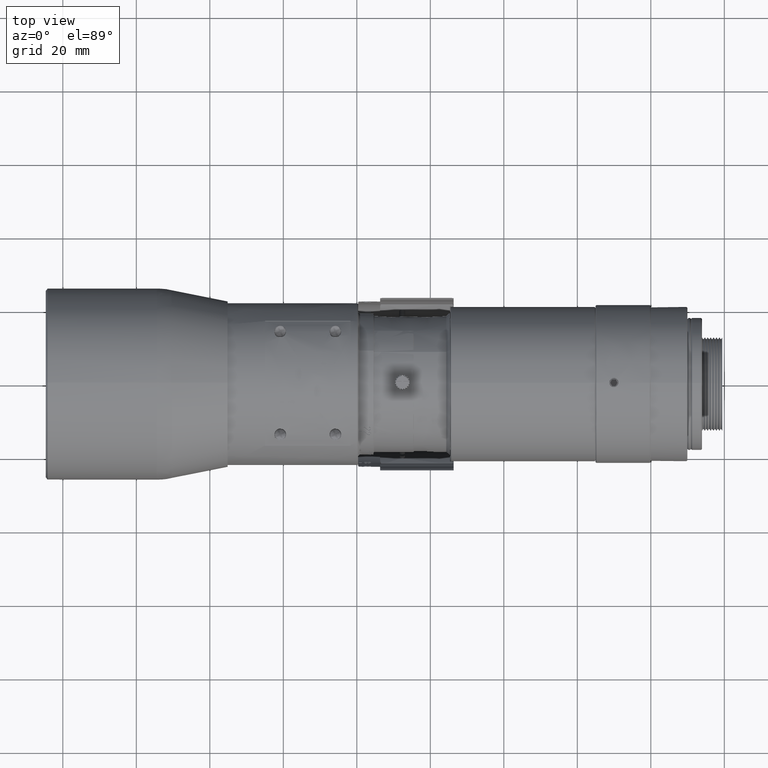
[diagram: clean part render]
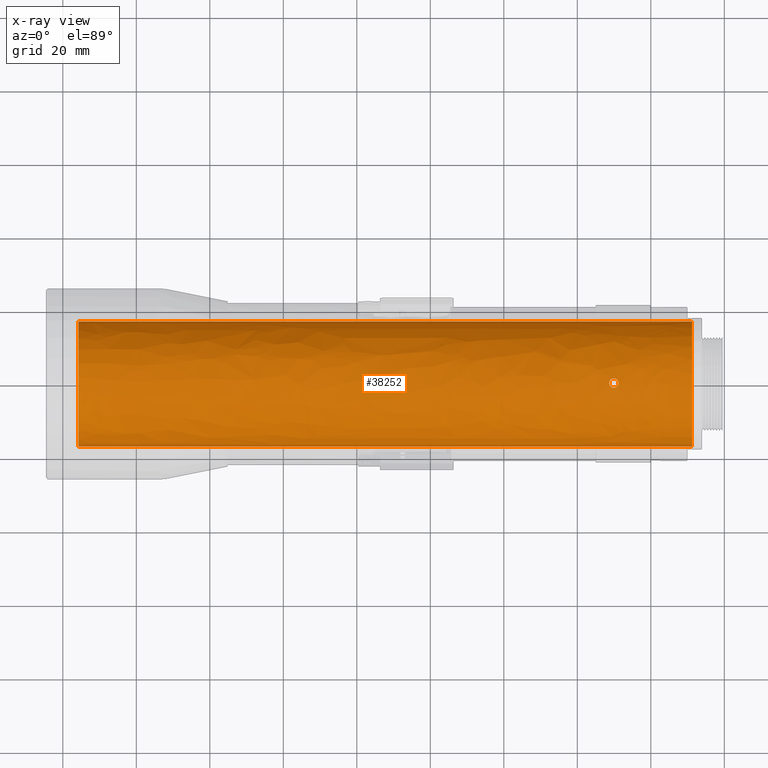
[diagram: x-ray — body ghosted, one internal face saturated and labeled with its STEP entity id]
A machine part, top view, then the same camera in x-ray: the body is ghosted and one INTERNAL B-rep face — a face not visible from any outside direction — is saturated and labeled: STEP entity #38252.
In plain terms, the highlighted face is a freeform B-spline surface patch.
Its self-contained STEP definition (entity closure, byte-faithful):
#93 = EDGE_CURVE ( 'NONE', #36945, #6915, #28534, .T. ) ;
#968 = B_SPLINE_CURVE_WITH_KNOTS ( 'NONE', 1,
 ( #3039, #31069 ),
 .UNSPECIFIED., .F., .F.,
 ( 2, 2 ),
 ( 0.0000000000000000000, 1.000000000000000000 ),
 .UNSPECIFIED. ) ;
#1198 = CARTESIAN_POINT ( 'NONE',  ( 91.23381903200002796, -2.227083858325334287, 16.99999999156800001 ) ) ;
#1501 = CARTESIAN_POINT ( 'NONE',  ( 68.78132211011450181, 0.4840254292036581529, 16.99310872926859872 ) ) ;
#1839 = CARTESIAN_POINT ( 'NONE',  ( 91.23381903199999954, 17.00000000000000711, 9.958369441000007427 ) ) ;
#1951 = CARTESIAN_POINT ( 'NONE',  ( 71.14352939452882651, 0.3176161523514182128, 16.99705119966425926 ) ) ;
#2062 = CARTESIAN_POINT ( 'NONE',  ( -75.76618096799998625, -2.999999999999999980E-09, 17.00000000000000000 ) ) ;
#2168 = CARTESIAN_POINT ( 'NONE',  ( 69.77858866378404912, 1.243030444851973337, 16.95453608318325678 ) ) ;
#2279 = CARTESIAN_POINT ( 'NONE',  ( 91.23381903199999954, 9.958369437999998297, 17.00000000199998951 ) ) ;
#2392 = CARTESIAN_POINT ( 'NONE',  ( 69.20408094663994802, 1.018173710666596232, 16.96964852246907185 ) ) ;
#2672 = CARTESIAN_POINT ( 'NONE',  ( 69.38957791143397458, -1.125426582329958292, 16.96273695177842811 ) ) ;
#2730 = CARTESIAN_POINT ( 'NONE',  ( -75.76618096800005731, 17.00000000000000711, 9.958369441000007427 ) ) ;
#2902 = CARTESIAN_POINT ( 'NONE',  ( 69.31127799167498438, -1.084740256887628540, 16.96542832699373449 ) ) ;
#3039 = CARTESIAN_POINT ( 'NONE',  ( -75.76618096799998625, 16.99999999718934873, 0.0000000000000000000 ) ) ;
#3127 = CARTESIAN_POINT ( 'NONE',  ( 71.18381877300001292, -0.1519175316954999022, 17.00000000000000355 ) ) ;
#4496 =( BOUNDED_SURFACE ( )  B_SPLINE_SURFACE ( 1, 3, ( 
 ( #40714, #2730, #34470, #2062, #41617, #23588, #24039 ),
 ( #30542, #1839, #2279, #9920, #26832, #38174, #5752 ) ),
 .UNSPECIFIED., .F., .F., .F. ) 
 B_SPLINE_SURFACE_WITH_KNOTS ( ( 2, 2 ),
 ( 4, 3, 4 ),
 ( 5.956645689006830486E-16, 1.000000000000000000 ),
 ( 0.0000000000000000000, 0.5000000000000000000, 1.000000000000000000 ),
 .UNSPECIFIED. ) 
 GEOMETRIC_REPRESENTATION_ITEM ( )  RATIONAL_B_SPLINE_SURFACE ( (
 ( 1.000000000000000000, 0.8047378540760219412, 0.8047378540760219412, 1.000000000000000000, 0.8047378540760219412, 0.8047378540760219412, 1.000000000000000000),
 ( 1.000000000000000000, 0.8047378540760219412, 0.8047378540760219412, 1.000000000000000000, 0.8047378540760219412, 0.8047378540760219412, 1.000000000000000000) ) ) 
 REPRESENTATION_ITEM ( '' )  SURFACE ( )  );
#4790 = CARTESIAN_POINT ( 'NONE',  ( 68.74217904229628573, -0.3780773361855345738, 16.99578742811408816 ) ) ;
#4992 = CARTESIAN_POINT ( 'NONE',  ( -75.76618096799998625, -14.85368398142933266, 8.563175549690672739 ) ) ;
#5197 = CARTESIAN_POINT ( 'NONE',  ( 68.85168258015103504, 0.6270209994428538325, 16.98836927865831115 ) ) ;
#5420 = CARTESIAN_POINT ( 'NONE',  ( 70.66434313007584933, 1.017600818304629673, 16.96968288934434099 ) ) ;
#5449 = CARTESIAN_POINT ( 'NONE',  ( -75.76618096799998625, 10.44602920562666348, 13.59560136170132516 ) ) ;
#5642 = CARTESIAN_POINT ( 'NONE',  ( 70.74127123385518701, 0.9603115474383292494, 16.97302731395404152 ) ) ;
#5752 = CARTESIAN_POINT ( 'NONE',  ( 91.23381903199999954, -17.00000000000000000, -6.999999999999999816E-09 ) ) ;
#5864 = CARTESIAN_POINT ( 'NONE',  ( 69.47634182189959517, 1.163290058185133979, 16.96015303297119203 ) ) ;
#6094 = CARTESIAN_POINT ( 'NONE',  ( 68.78473455849874085, 0.4920550854908297134, 16.99287573300781418 ) ) ;
#6145 = CARTESIAN_POINT ( 'NONE',  ( 70.48730794375788378, -1.121530956696588310, 16.96295489823731728 ) ) ;
#6375 = CARTESIAN_POINT ( 'NONE',  ( 70.69636221721938796, -0.9913110885231470881, 16.97113569513353326 ) ) ;
#6610 = CARTESIAN_POINT ( 'NONE',  ( 70.00899145587885641, -1.250052460625155515, 16.95397796488071762 ) ) ;
#6915 = VERTEX_POINT ( 'NONE', #28695 ) ;
#7682 = CARTESIAN_POINT ( 'NONE',  ( 91.23381903199999954, -16.99999999718934873, -2.333333333333334788E-09 ) ) ;
#7759 = CARTESIAN_POINT ( 'NONE',  ( 71.18381876409499398, -7.499999999999999950E-10, 17.00000000000000000 ) ) ;
#8278 = CARTESIAN_POINT ( 'NONE',  ( 68.69079919058110306, -0.1554537336088003541, 16.99943832374854580 ) ) ;
#8375 = CARTESIAN_POINT ( 'NONE',  ( -75.76618096799998625, -16.99999999718934873, -2.333333333333334788E-09 ) ) ;
#8498 = CARTESIAN_POINT ( 'NONE',  ( 68.68381877303033889, -0.07590494265071084934, 16.99999999999999645 ) ) ;
#8674 = CARTESIAN_POINT ( 'NONE',  ( 71.09663133654227352, 0.4586893414732676200, 16.99381059096194946 ) ) ;
#8700 = CARTESIAN_POINT ( 'NONE',  ( -75.76618096799998625, 16.99999999718934873, 0.0000000000000000000 ) ) ;
#8852 = ORIENTED_EDGE ( 'NONE', *, *, #16765, .F. ) ;
#9125 = CARTESIAN_POINT ( 'NONE',  ( 68.78194328006544822, 0.4854848998175011476, 16.99306626368313289 ) ) ;
#9269 = CARTESIAN_POINT ( 'NONE',  ( 91.23381903199999954, -16.99999999718934873, -2.333333333333334788E-09 ) ) ;
#9348 = CARTESIAN_POINT ( 'NONE',  ( 71.11551516030290543, 0.4085256636701373734, 16.99510288515670808 ) ) ;
#9406 = CARTESIAN_POINT ( 'NONE',  ( 70.81008350334397505, -0.8914508335610688006, 16.97661150516399431 ) ) ;
#9515 = CARTESIAN_POINT ( 'NONE',  ( 91.23381903199999954, 16.99999999718934873, 0.0000000000000000000 ) ) ;
#9581 = CARTESIAN_POINT ( 'NONE',  ( 68.80328319151857386, 0.5335066506597301306, 16.99160629145727341 ) ) ;
#9631 = CARTESIAN_POINT ( 'NONE',  ( 69.43377810618578394, -1.145661568579194434, 16.96135664458083880 ) ) ;
#9694 = FACE_BOUND ( 'NONE', #32334, .T. ) ;
#9860 = CARTESIAN_POINT ( 'NONE',  ( 69.44303690726133027, -1.149627760714126756, 16.96108522158208487 ) ) ;
#9920 = CARTESIAN_POINT ( 'NONE',  ( 91.23381903199999954, -2.999999999999999980E-09, 17.00000000000000000 ) ) ;
#10090 = CARTESIAN_POINT ( 'NONE',  ( 69.01713305219202255, -0.8498969888463805411, 16.97878427768916154 ) ) ;
#10222 = CARTESIAN_POINT ( 'NONE',  ( 91.23381903199999954, -16.99999999718934873, -2.333333333333334788E-09 ) ) ;
#10897 = B_SPLINE_CURVE_WITH_KNOTS ( 'NONE', 1,
 ( #7682, #8375 ),
 .UNSPECIFIED., .F., .F.,
 ( 2, 2 ),
 ( 0.0000000000000000000, 1.000000000000000000 ),
 .UNSPECIFIED. ) ;
#11160 = CARTESIAN_POINT ( 'NONE',  ( 91.23381903200002796, 8.563175549690660304, 14.85368398142933977 ) ) ;
#11954 = CARTESIAN_POINT ( 'NONE',  ( -75.76618096800001467, -8.563175549690670962, 14.85368398142933799 ) ) ;
#11983 = CARTESIAN_POINT ( 'NONE',  ( 68.90555989061091680, -0.7119309417388490768, 16.98515846246153416 ) ) ;
#12154 = CARTESIAN_POINT ( 'NONE',  ( 69.49134894220027547, 1.169154391186667086, 16.95975197781912058 ) ) ;
#12179 = CARTESIAN_POINT ( 'NONE',  ( -75.76618096799998625, 13.59560136170133937, 10.44602920562667769 ) ) ;
#12380 = CARTESIAN_POINT ( 'NONE',  ( 68.97405845274771252, 0.8081140029518857348, 16.98095413734986536 ) ) ;
#12434 = CARTESIAN_POINT ( 'NONE',  ( 68.77580662910398246, -0.4707246798332718751, 16.99348349623311449 ) ) ;
#12604 = CARTESIAN_POINT ( 'NONE',  ( 70.42563302797131541, 1.149187279166414388, 16.96111545106879603 ) ) ;
#12832 = CARTESIAN_POINT ( 'NONE',  ( 69.65782214327147415, 1.219838566682898362, 16.95621640507151895 ) ) ;
#12879 = CARTESIAN_POINT ( 'NONE',  ( 68.99355832669210997, -0.8242220319804514084, 16.98008052844447491 ) ) ;
#13055 = CARTESIAN_POINT ( 'NONE',  ( 69.34303513350033654, 1.104612914867832529, 16.96422488325965361 ) ) ;
#13113 = CARTESIAN_POINT ( 'NONE',  ( 69.45000456671246525, -1.152585303725017107, 16.96088297870069184 ) ) ;
#13340 = CARTESIAN_POINT ( 'NONE',  ( 71.08218038762434787, -0.4937425636441016841, 16.99282753161959292 ) ) ;
#13443 = ORIENTED_EDGE ( 'NONE', *, *, #13481, .F. ) ;
#13481 = EDGE_CURVE ( 'NONE', #23324, #25945, #19451, .T. ) ;
#13558 = CARTESIAN_POINT ( 'NONE',  ( 71.08631543513322981, -0.4840254315253180173, 16.99310872930506022 ) ) ;
#14688 = VERTEX_POINT ( 'NONE', #10222 ) ;
#14865 = CARTESIAN_POINT ( 'NONE',  ( 91.23381903200002796, 14.85368398142933799, 8.563175549690669186 ) ) ;
#15321 = CARTESIAN_POINT ( 'NONE',  ( 91.23381903200001375, -10.44602920562666526, 13.59560136170132694 ) ) ;
#15621 = CARTESIAN_POINT ( 'NONE',  ( 70.89409920712681412, 0.8074894627905560007, 16.98098393068343270 ) ) ;
#15649 = CARTESIAN_POINT ( 'NONE',  ( -75.76618096799997204, 16.55822015009066206, 4.448061145381333681 ) ) ;
#15905 = CARTESIAN_POINT ( 'NONE',  ( 68.76325280460801537, -0.4386238070651878318, 16.99433935652830030 ) ) ;
#16074 = CARTESIAN_POINT ( 'NONE',  ( 68.83349332725744318, 0.5941027961930754886, 16.98956711351150162 ) ) ;
#16299 = CARTESIAN_POINT ( 'NONE',  ( 70.25328732229274920, 1.220739500392393095, 16.95624318882171977 ) ) ;
#16527 = CARTESIAN_POINT ( 'NONE',  ( 69.12705909217720546, 0.9608990225896618664, 16.97299398228711098 ) ) ;
#16673 = CARTESIAN_POINT ( 'NONE',  ( 91.23381903200001375, -16.99999999156800712, 2.227083858325334731 ) ) ;
#16765 = EDGE_CURVE ( 'NONE', #14688, #36945, #10897, .T. ) ;
#16803 = CARTESIAN_POINT ( 'NONE',  ( 70.88972255823252056, -0.8119651030199113162, 16.98075349411677948 ) ) ;
#16817 = EDGE_CURVE ( 'NONE', #25550, #14688, #44019, .T. ) ;
#17028 = CARTESIAN_POINT ( 'NONE',  ( 70.79229042529426863, -0.9086798751101026195, 16.97570382339406336 ) ) ;
#17258 = CARTESIAN_POINT ( 'NONE',  ( 70.33102942070698305, -1.185962631775709264, 16.95859933629895266 ) ) ;
#18799 = CARTESIAN_POINT ( 'NONE',  ( 91.23381903200001375, 16.55822015009066561, 4.448061145381325687 ) ) ;
#18929 = CARTESIAN_POINT ( 'NONE',  ( 68.80542325945283721, -0.5421714844191339866, 16.99147099497788815 ) ) ;
#19386 = CARTESIAN_POINT ( 'NONE',  ( 68.71411077607299944, -0.2765922790356063476, 16.99775329499417609 ) ) ;
#19451 = B_SPLINE_CURVE_WITH_KNOTS ( 'NONE', 3,
 ( #7759, #30433, #43864, #33677, #1951, #30653, #9348, #29755, #8674, #23251, #26943, #37380, #44306, #41046, #15621, #5642, #5420, #23695, #19786, #20236, #20010, #37828, #44752, #12604, #33903, #44533, #16299, #22808, #33453, #2168, #12832, #23473, #26718, #37606, #12154, #5864, #34129, #19557, #37152, #13055, #2392, #16527, #12380, #27171, #5197, #16074, #41274, #9581, #30207, #40832, #6094, #9125, #1501, #26268, #40390, #36932 ),
 .UNSPECIFIED., .F., .F.,
 ( 4, 2, 2, 1, 1, 2, 2, 2, 2, 2, 2, 2, 1, 2, 2, 2, 2, 2, 1, 1, 2, 2, 2, 2, 2, 2, 2, 1, 2, 2, 4 ),
 ( 0.0000000000000000000, 0.06249999999989777622, 0.09374999999984566512, 0.1093749999998211014, 0.1171874999998071126, 0.1210937499998000905, 0.1249999999997930822, 0.1874999999997406241, 0.2499999999996881939, 0.3124999999996357358, 0.3437499999996140865, 0.3593749999996032063, 0.3671874999995977662, 0.3710937499995950462, 0.3749999999995923261, 0.4999999999995974331, 0.5624999999995943245, 0.5937499999995928812, 0.6093749999995921041, 0.6171874999995917710, 0.6210937499995915489, 0.6249999999995913269, 0.6874999999996327382, 0.7499999999996740385, 0.8124999999997153388, 0.8437499999997359890, 0.8593749999997463140, 0.8671874999997543076, 0.8710937499997584155, 0.8749999999997624123, 1.000000000000000000 ),
 .UNSPECIFIED. ) ;
#19557 = CARTESIAN_POINT ( 'NONE',  ( 69.45958233419750627, 1.156551699064669814, 16.96061289922075588 ) ) ;
#19786 = CARTESIAN_POINT ( 'NONE',  ( 70.52745279054602179, 1.100576159005091759, 16.96442027857368728 ) ) ;
#20010 = CARTESIAN_POINT ( 'NONE',  ( 70.46697798085210707, 1.130698930640983590, 16.96238323920866975 ) ) ;
#20236 = CARTESIAN_POINT ( 'NONE',  ( 70.48166102526690224, 1.123681971797569901, 16.96286278574891426 ) ) ;
#20288 = CARTESIAN_POINT ( 'NONE',  ( 70.74370423605535052, -0.9523670938507238226, 16.97333396076422218 ) ) ;
#20292 = CARTESIAN_POINT ( 'NONE',  ( 71.18381876409499398, -7.499999999999999950E-10, 17.00000000000000000 ) ) ;
#20513 = CARTESIAN_POINT ( 'NONE',  ( 71.05408134251686647, -0.5548279762856056507, 16.99092556133064846 ) ) ;
#20743 = CARTESIAN_POINT ( 'NONE',  ( 69.40386527935429228, -1.132195654335965473, 16.96227706682931924 ) ) ;
#21567 = EDGE_CURVE ( 'NONE', #25945, #23324, #24941, .T. ) ;
#22123 = CARTESIAN_POINT ( 'NONE',  ( 68.68381875940498560, -1.250000000000000026E-09, 17.00000000000000000 ) ) ;
#22252 = EDGE_LOOP ( 'NONE', ( #8852, #24207, #35296, #29028 ) ) ;
#22633 = CARTESIAN_POINT ( 'NONE',  ( 68.93025953391929761, -0.7465425892389128126, 16.98368892136397434 ) ) ;
#22808 = CARTESIAN_POINT ( 'NONE',  ( 70.08788754896565365, 1.249893397993902200, 16.95398969297061953 ) ) ;
#23251 = CARTESIAN_POINT ( 'NONE',  ( 71.09263815205392234, 0.4686860533887048375, 16.99353852902622108 ) ) ;
#23324 = VERTEX_POINT ( 'NONE', #20292 ) ;
#23473 = CARTESIAN_POINT ( 'NONE',  ( 69.61733698581539898, 1.210006568634891089, 16.95691702908744958 ) ) ;
#23529 = CARTESIAN_POINT ( 'NONE',  ( 70.94531259524457312, -0.7389088137989752170, 16.98399948683352889 ) ) ;
#23588 = CARTESIAN_POINT ( 'NONE',  ( -75.76618096800005731, -17.00000000399999323, 9.958369434000001519 ) ) ;
#23695 = CARTESIAN_POINT ( 'NONE',  ( 70.56032156730455540, 1.082434092275446957, 16.96561707806228370 ) ) ;
#23745 = CARTESIAN_POINT ( 'NONE',  ( 70.20949063612781060, -1.219914198747375833, 16.95621644905319414 ) ) ;
#23977 = CARTESIAN_POINT ( 'NONE',  ( 69.78087141830610562, -1.249894176392845946, 16.95398963488075594 ) ) ;
#24039 = CARTESIAN_POINT ( 'NONE',  ( -75.76618096799998625, -17.00000000000000000, -6.999999999999999816E-09 ) ) ;
#24207 = ORIENTED_EDGE ( 'NONE', *, *, #16817, .F. ) ;
#24211 = CARTESIAN_POINT ( 'NONE',  ( 71.15462391953478516, -0.3193893286378963192, 16.99774978916083512 ) ) ;
#24941 = B_SPLINE_CURVE_WITH_KNOTS ( 'NONE', 3,
 ( #44137, #8498, #8278, #19386, #30258, #4790, #36534, #15905, #43690, #12434, #18929, #40658, #11983, #22633, #41328, #12879, #10090, #30704, #34179, #45257, #45480, #2902, #31387, #2672, #20743, #41557, #9631, #9860, #44805, #13113, #37881, #23977, #6610, #27225, #23745, #26997, #17258, #30931, #34870, #6145, #27678, #27450, #41104, #6375, #20288, #34408, #17028, #41787, #9406, #31155, #16803, #23529, #45032, #30486, #20513, #44587, #38112, #13340, #34641, #13558, #24211, #3127, #37656 ),
 .UNSPECIFIED., .F., .F.,
 ( 4, 2, 2, 1, 2, 2, 2, 2, 1, 2, 2, 2, 2, 2, 1, 2, 2, 2, 2, 2, 2, 2, 2, 2, 1, 1, 2, 2, 2, 2, 1, 1, 2, 2, 4 ),
 ( 0.0000000000000000000, 0.06249999999989033772, 0.09374999999983649190, 0.1093749999998080702, 0.1171874999997938732, 0.1249999999997796762, 0.1874999999996952160, 0.2187499999996558586, 0.2343749999996362354, 0.2421874999996233291, 0.2499999999996104227, 0.3124999999995352606, 0.3437499999994976796, 0.3593749999994789168, 0.3671874999994694799, 0.3710937499994719779, 0.3749999999994745314, 0.4999999999995481392, 0.5624999999995848876, 0.5937499999995980993, 0.6249999999996113109, 0.6562499999996246336, 0.6874999999996378452, 0.7187499999996510569, 0.7343749999996576072, 0.7421874999996608269, 0.7460937499996626032, 0.7499999999996642686, 0.8124999999997561950, 0.8437499999998021583, 0.8593749999998251399, 0.8671874999998339106, 0.8710937499998382405, 0.8749999999998425704, 1.000000000000000000 ),
 .UNSPECIFIED. ) ;
#25550 = VERTEX_POINT ( 'NONE', #9515 ) ;
#25598 = ORIENTED_EDGE ( 'NONE', *, *, #21567, .F. ) ;
#25945 = VERTEX_POINT ( 'NONE', #22123 ) ;
#25966 = CARTESIAN_POINT ( 'NONE',  ( 91.23381903200002796, 2.227083858325336507, 16.99999999156800357 ) ) ;
#26068 = CARTESIAN_POINT ( 'NONE',  ( -75.76618096800000046, -2.227083858325333843, 16.99999999156800357 ) ) ;
#26192 = CARTESIAN_POINT ( 'NONE',  ( 91.23381903200001375, 16.99999999156800001, 2.227083858325335619 ) ) ;
#26268 = CARTESIAN_POINT ( 'NONE',  ( 68.71301363996546741, 0.3193893602175318369, 16.99774978914892998 ) ) ;
#26293 = CARTESIAN_POINT ( 'NONE',  ( -75.76618096799998625, 14.85368398142933799, 8.563175549690658528 ) ) ;
#26718 = CARTESIAN_POINT ( 'NONE',  ( 69.55674360802822775, 1.191955735069044175, 16.95817874019114768 ) ) ;
#26745 = CARTESIAN_POINT ( 'NONE',  ( -75.76618096800000046, 16.99999999156800357, 2.227083858325336951 ) ) ;
#26832 = CARTESIAN_POINT ( 'NONE',  ( 91.23381903199999954, -9.958369445000007758, 16.99999999800000339 ) ) ;
#26943 = CARTESIAN_POINT ( 'NONE',  ( 71.08986953713893797, 0.4754562884815416446, 16.99335021703092607 ) ) ;
#26997 = CARTESIAN_POINT ( 'NONE',  ( 70.25007533913530722, -1.210068364603953839, 16.95691706941958898 ) ) ;
#27171 = CARTESIAN_POINT ( 'NONE',  ( 68.91666281774733704, 0.7311566580213617605, 16.98430045175124548 ) ) ;
#27225 = CARTESIAN_POINT ( 'NONE',  ( 70.08852425636898431, -1.243104471257660437, 16.95453612717384217 ) ) ;
#27450 = CARTESIAN_POINT ( 'NONE',  ( 70.59271333348767996, -1.063081265192855396, 16.96669970241370251 ) ) ;
#27678 = CARTESIAN_POINT ( 'NONE',  ( 70.55963167842196526, -1.082838933713843765, 16.96544751657711458 ) ) ;
#28534 = B_SPLINE_CURVE_WITH_KNOTS ( 'NONE', 3,
 ( #42743, #39288, #40417, #4992, #43888, #33025, #11954, #29552, #26068, #44331, #30233, #37181, #5449, #12179, #26293, #15649, #26745, #8700 ),
 .UNSPECIFIED., .F., .F.,
 ( 4, 2, 2, 2, 2, 2, 2, 2, 4 ),
 ( 0.0000000000000000000, 0.1250000000000000555, 0.2500000000000000555, 0.3750000000000000555, 0.5000000000000000000, 0.6250000000000000000, 0.7500000000000000000, 0.8749999999999998890, 1.000000000000000000 ),
 .UNSPECIFIED. ) ;
#28695 = CARTESIAN_POINT ( 'NONE',  ( -75.76618096799998625, 16.99999999718934873, 0.0000000000000000000 ) ) ;
#28986 = CARTESIAN_POINT ( 'NONE',  ( 91.23381903200001375, -4.448061145381338122, 16.55822015009066916 ) ) ;
#29028 = ORIENTED_EDGE ( 'NONE', *, *, #93, .F. ) ;
#29552 = CARTESIAN_POINT ( 'NONE',  ( -75.76618096799998625, -4.448061145381334569, 16.55822015009066206 ) ) ;
#29755 = CARTESIAN_POINT ( 'NONE',  ( 71.10251634259547870, 0.4436754223801638863, 16.99421210172196339 ) ) ;
#29906 = CARTESIAN_POINT ( 'NONE',  ( 91.23381903200001375, -14.85368398142933266, 8.563175549690660304 ) ) ;
#30207 = CARTESIAN_POINT ( 'NONE',  ( 68.79362615607273312, 0.5123678442041300629, 16.99226700642341115 ) ) ;
#30233 = CARTESIAN_POINT ( 'NONE',  ( -75.76618096799998625, 4.448061145381324799, 16.55822015009066916 ) ) ;
#30258 = CARTESIAN_POINT ( 'NONE',  ( 68.72400888552654408, -0.3172552835760075185, 16.99705119967986278 ) ) ;
#30433 = CARTESIAN_POINT ( 'NONE',  ( 71.18381877300002714, 0.07663150474953135671, 17.00000000000000711 ) ) ;
#30486 = CARTESIAN_POINT ( 'NONE',  ( 71.02948726439126403, -0.6027435512521873706, 16.98929122898266186 ) ) ;
#30542 = CARTESIAN_POINT ( 'NONE',  ( 91.23381903199999954, 17.00000000000000000, 0.0000000000000000000 ) ) ;
#30653 = CARTESIAN_POINT ( 'NONE',  ( 71.12540368915045974, 0.3782464006480992236, 16.99578742809179843 ) ) ;
#30704 = CARTESIAN_POINT ( 'NONE',  ( 69.03324447940521225, -0.8669507160738282314, 16.97790573311656814 ) ) ;
#30931 = CARTESIAN_POINT ( 'NONE',  ( 70.37269130290343355, -1.171167205141617984, 16.95961740822868435 ) ) ;
#31069 = CARTESIAN_POINT ( 'NONE',  ( 91.23381903199999954, 16.99999999718934873, 0.0000000000000000000 ) ) ;
#31155 = CARTESIAN_POINT ( 'NONE',  ( 70.81253853901679918, -0.8890403491074057030, 16.97673784530429231 ) ) ;
#31387 = CARTESIAN_POINT ( 'NONE',  ( 69.34443506405040125, -1.102841454067273741, 16.96424725678234324 ) ) ;
#32334 = EDGE_LOOP ( 'NONE', ( #25598, #13443 ) ) ;
#32927 = CARTESIAN_POINT ( 'NONE',  ( 91.23381903200002796, 13.59560136170133049, 10.44602920562666348 ) ) ;
#33025 = CARTESIAN_POINT ( 'NONE',  ( -75.76618096799997204, -10.44602920562666348, 13.59560136170133404 ) ) ;
#33453 = CARTESIAN_POINT ( 'NONE',  ( 69.85808538133667867, 1.250052849645281849, 16.95397793547052601 ) ) ;
#33633 = CARTESIAN_POINT ( 'NONE',  ( -75.76618096799998625, -16.99999999718934873, -2.333333333333334788E-09 ) ) ;
#33677 = CARTESIAN_POINT ( 'NONE',  ( 71.15340781690201766, 0.2771028175792226711, 16.99775329498229226 ) ) ;
#33791 = FACE_OUTER_BOUND ( 'NONE', #22252, .T. ) ;
#33903 = CARTESIAN_POINT ( 'NONE',  ( 70.41908181145420542, 1.151968943809560164, 16.96092519996703274 ) ) ;
#34129 = CARTESIAN_POINT ( 'NONE',  ( 69.46634950534020447, 1.159310745249307883, 16.96042479422008142 ) ) ;
#34179 = CARTESIAN_POINT ( 'NONE',  ( 69.04039127834590772, -0.8743398266750935788, 16.97751864025423529 ) ) ;
#34408 = CARTESIAN_POINT ( 'NONE',  ( 70.76668960358367144, -0.9324855889223928607, 16.97443013397017708 ) ) ;
#34470 = CARTESIAN_POINT ( 'NONE',  ( -75.76618096800005731, 9.958369437999998297, 17.00000000199998951 ) ) ;
#34641 = CARTESIAN_POINT ( 'NONE',  ( 71.08532815581884279, -0.4863561024350657180, 16.99304157518460912 ) ) ;
#34870 = CARTESIAN_POINT ( 'NONE',  ( 70.44983072186336415, -1.139286350535265946, 16.96178887656764189 ) ) ;
#35296 = ORIENTED_EDGE ( 'NONE', *, *, #45714, .F. ) ;
#35941 = CARTESIAN_POINT ( 'NONE',  ( 91.23381903200002796, 4.448061145381336345, 16.55822015009066561 ) ) ;
#36534 = CARTESIAN_POINT ( 'NONE',  ( 68.75209273160065493, -0.4084440369850920738, 16.99510288518261447 ) ) ;
#36932 = CARTESIAN_POINT ( 'NONE',  ( 68.68381875940498560, -1.250000000000000026E-09, 17.00000000000000000 ) ) ;
#36945 = VERTEX_POINT ( 'NONE', #33633 ) ;
#37152 = CARTESIAN_POINT ( 'NONE',  ( 69.40508372540860194, 1.134028036757604108, 16.96214702970160104 ) ) ;
#37181 = CARTESIAN_POINT ( 'NONE',  ( -75.76618096799998625, 8.563175549690672739, 14.85368398142933444 ) ) ;
#37380 = CARTESIAN_POINT ( 'NONE',  ( 71.06727047104099881, 0.5299740051092789450, 16.99181457160214848 ) ) ;
#37606 = CARTESIAN_POINT ( 'NONE',  ( 69.52648143194812747, 1.182105944251748531, 16.95886228951293617 ) ) ;
#37656 = CARTESIAN_POINT ( 'NONE',  ( 71.18381876409499398, -7.499999999999999950E-10, 17.00000000000000000 ) ) ;
#37828 = CARTESIAN_POINT ( 'NONE',  ( 70.44589097472052686, 1.140325288400996229, 16.96172334600034759 ) ) ;
#37881 = CARTESIAN_POINT ( 'NONE',  ( 69.61435212324398947, -1.220740288192190270, 16.95624313571992658 ) ) ;
#38112 = CARTESIAN_POINT ( 'NONE',  ( 71.07736725407713152, -0.5048889041544720735, 16.99250021500498420 ) ) ;
#38174 = CARTESIAN_POINT ( 'NONE',  ( 91.23381903199999954, -17.00000000399999323, 9.958369434000001519 ) ) ;
#38252 = ADVANCED_FACE ( 'NONE', ( #9694, #33791 ), #4496, .F. ) ;
#39288 = CARTESIAN_POINT ( 'NONE',  ( -75.76618096800002888, -16.99999999156800001, 2.227083858325334287 ) ) ;
#39647 = CARTESIAN_POINT ( 'NONE',  ( 91.23381903200002796, -8.563175549690663857, 14.85368398142933799 ) ) ;
#40390 = CARTESIAN_POINT ( 'NONE',  ( 68.68381877299997029, 0.1533718913676983542, 17.00000000000000000 ) ) ;
#40417 = CARTESIAN_POINT ( 'NONE',  ( -75.76618096799998625, -16.55822015009066916, 4.448061145381325687 ) ) ;
#40658 = CARTESIAN_POINT ( 'NONE',  ( 68.83925475939406624, -0.6091613898218810608, 16.98922202809706761 ) ) ;
#40714 = CARTESIAN_POINT ( 'NONE',  ( -75.76618096799998625, 17.00000000000000000, 0.0000000000000000000 ) ) ;
#40832 = CARTESIAN_POINT ( 'NONE',  ( 68.78902284112646726, 0.5020316422025739023, 16.99258251008313181 ) ) ;
#40970 = CARTESIAN_POINT ( 'NONE',  ( 91.23381903200001375, -13.59560136170133404, 10.44602920562667236 ) ) ;
#41046 = CARTESIAN_POINT ( 'NONE',  ( 70.95127462601726620, 0.7307308463546681176, 16.98431930550139768 ) ) ;
#41104 = CARTESIAN_POINT ( 'NONE',  ( 70.66296792251561953, -1.016181743582293517, 16.96966229242137558 ) ) ;
#41274 = CARTESIAN_POINT ( 'NONE',  ( 68.81032142039710209, 0.5482219013210417602, 16.99112620461754730 ) ) ;
#41328 = CARTESIAN_POINT ( 'NONE',  ( 68.97172347960760419, -0.7983494803323109013, 16.98131208088907229 ) ) ;
#41427 = CARTESIAN_POINT ( 'NONE',  ( 91.23381903200001375, -16.55822015009066206, 4.448061145381336345 ) ) ;
#41557 = CARTESIAN_POINT ( 'NONE',  ( 69.42401964083968835, -1.141340997004216096, 16.96165256448394842 ) ) ;
#41617 = CARTESIAN_POINT ( 'NONE',  ( -75.76618096800005731, -9.958369445000007758, 16.99999999800000339 ) ) ;
#41787 = CARTESIAN_POINT ( 'NONE',  ( 70.80300111290723919, -0.8983576828282339166, 16.97624858043649709 ) ) ;
#42743 = CARTESIAN_POINT ( 'NONE',  ( -75.76618096799998625, -16.99999999718934873, -2.333333333333334788E-09 ) ) ;
#42876 = CARTESIAN_POINT ( 'NONE',  ( 91.23381903200002796, 10.44602920562667414, 13.59560136170133759 ) ) ;
#43690 = CARTESIAN_POINT ( 'NONE',  ( 68.77096860922586075, -0.4586883768993572641, 16.99381278504256443 ) ) ;
#43789 = CARTESIAN_POINT ( 'NONE',  ( 91.23381903199999954, 16.99999999718934873, 0.0000000000000000000 ) ) ;
#43864 = CARTESIAN_POINT ( 'NONE',  ( 71.17672724358540393, 0.1562439242324426547, 16.99943832374557928 ) ) ;
#43888 = CARTESIAN_POINT ( 'NONE',  ( -75.76618096799997204, -13.59560136170133227, 10.44602920562665993 ) ) ;
#44019 = B_SPLINE_CURVE_WITH_KNOTS ( 'NONE', 3,
 ( #43789, #26192, #18799, #14865, #32927, #42876, #11160, #35941, #25966, #1198, #28986, #39647, #15321, #40970, #29906, #41427, #16673, #9269 ),
 .UNSPECIFIED., .F., .F.,
 ( 4, 2, 2, 2, 2, 2, 2, 2, 4 ),
 ( 0.0000000000000000000, 0.1250000000000000000, 0.2499999999999999722, 0.3749999999999999445, 0.5000000000000000000, 0.6250000000000000000, 0.7500000000000000000, 0.8750000000000000000, 1.000000000000000000 ),
 .UNSPECIFIED. ) ;
#44137 = CARTESIAN_POINT ( 'NONE',  ( 68.68381875940498560, -1.250000000000000026E-09, 17.00000000000000000 ) ) ;
#44306 = CARTESIAN_POINT ( 'NONE',  ( 71.03778588596287591, 0.5919802329135660512, 16.98973739304410557 ) ) ;
#44331 = CARTESIAN_POINT ( 'NONE',  ( -75.76618096800000046, 2.227083858325335619, 16.99999999156800001 ) ) ;
#44533 = CARTESIAN_POINT ( 'NONE',  ( 70.41763292055524914, 1.152585327884990685, 16.96088297682705104 ) ) ;
#44587 = CARTESIAN_POINT ( 'NONE',  ( 71.06547615450222111, -0.5313597592840686445, 16.99169271736779763 ) ) ;
#44752 = CARTESIAN_POINT ( 'NONE',  ( 70.43558154592271592, 1.144913569766967898, 16.96140825604668478 ) ) ;
#44805 = CARTESIAN_POINT ( 'NONE',  ( 69.44909626585486251, -1.152195694753356259, 16.96090971667277358 ) ) ;
#45032 = CARTESIAN_POINT ( 'NONE',  ( 71.01068930505478249, -0.6360042091950858234, 16.98806831371907577 ) ) ;
#45257 = CARTESIAN_POINT ( 'NONE',  ( 69.12644071530623080, -0.9603859477626753849, 16.97290147992976728 ) ) ;
#45480 = CARTESIAN_POINT ( 'NONE',  ( 69.20552748349201977, -1.019296617096657087, 16.96949413825426944 ) ) ;
#45714 = EDGE_CURVE ( 'NONE', #6915, #25550, #968, .T. ) ;